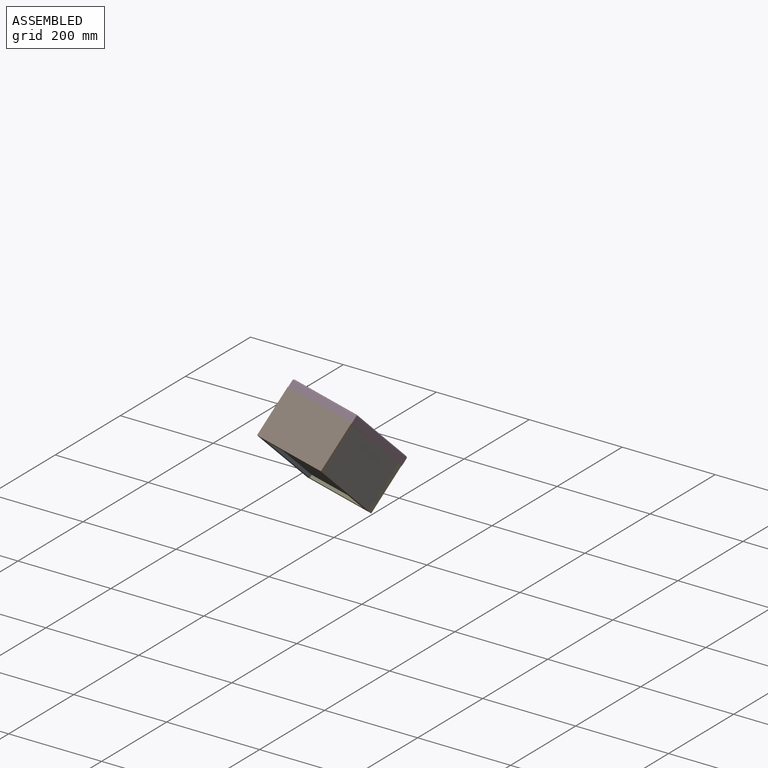
[diagram: assembled view]
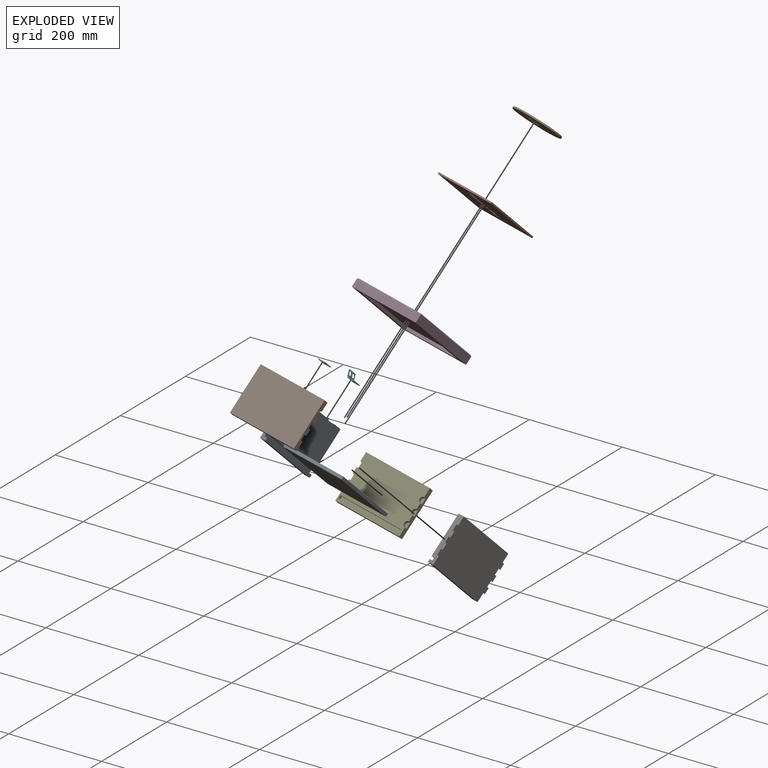
[diagram: exploded view]
GUIDED TOUR — MATED ASSEMBLY WITH SUBASSEMBLIES (Onshape document 33aced2103e464cf82bb9187, AutoMate assembly 33aced2103e464cf82bb9187_d0016f18dbe5ddd5e7f91160_2b6aa638e7e34dd8606e38a6_default)

This assembly has 12 component occurrences arranged in 10 top-level units: 8 individual components plus 2 subassemblies (S0, S1). The tour has two levels: first the top level, where each subassembly is treated as one rigid unit; then each subassembly is toured internally in its own section (nesting deeper than one subassembly level is flattened into its subassembly's section).

Components are labeled P0..P11 across the whole record; subassembly units are labeled S0..S1. A mate is a constraint between two units; its type names the relative motion it leaves free:
  FASTENED — locks the two components together rigidly (no relative motion),
  REVOLUTE — leaves rotation about the listed axis free (a hinge).
Axis/direction vectors are unit vectors and 'through' points are millimeter coordinates, both in the assembly's world frame.

TOP-LEVEL MATES (between units; each subassembly's internal mates are listed in its own section)
  1. FASTENED "Fastened 5": S1 <-> P0, direction (0.191, 0.659, 0.728) through (54.44, 19.80, -1.23) mm
  2. FASTENED "Fastened 6": S0 <-> P0, direction (0.191, 0.659, 0.728) through (56.53, -65.21, 75.15) mm
  3. FASTENED "Fastened 7": S0 <-> P3, direction (0.191, 0.659, 0.728) through (57.24, -65.20, 74.92) mm
  4. FASTENED "Fastened 1": P1 <-> P0, direction (-0.018, 0.744, -0.668) through (44.37, -130.27, 69.60) mm
  5. FASTENED "Fastened 8": P8 <-> P3, direction (0.191, 0.659, 0.728) through (125.93, -26.61, 30.46) mm
  6. FASTENED "Fastened 2": P6 <-> P1, direction (0.018, -0.744, 0.668) through (193.50, -130.32, 65.46) mm
  7. FASTENED "Fastened 9": P3 <-> P11, direction (0.191, 0.659, 0.728) through (124.58, -17.61, 35.76) mm
  8. FASTENED "Fastened 4": P0 <-> P10, direction (0.981, -0.114, -0.154) through (38.22, -82.30, -28.90) mm
  9. FASTENED "Fastened 3": P4 <-> P0, direction (0.018, -0.744, 0.668) through (40.66, 20.86, -66.19) mm

TOP-LEVEL ASSEMBLY ORDER
  1. P10 — the base component [order verified]
  2. P0 [order verified]
  3. S0 [order verified]
  4. P8 [order verified]
  5. S1 [order verified]
  6. P3 [order verified]
  7. P4 [order verified]
  8. P6 [order verified]
  9. P1 [order verified]
  10. P11 [order verified]
(P1, P3, P11 verified with a relaxed clearance tolerance: the source model stores slight part interference there.)
Order-tag legend:
  [order verified] — this step's position reverses a verified removal order: the component was checked to insert without passing through the ones already placed.

Of the 12 component occurrences, 7 carry the full construction recipe — the FeatureScript program that regenerates the part's solid from scratch; the rest are supplied as boundary geometry only. Each toured unit is shown spotlighted twice — assembled, then exploded with a leader line back to its socket (green = recipe-attached component, orange = geometry-only, blue = subassembly unit; the rest desaturated gray).
NOTE — document 2 of 2 of this assembly tour. The two overview renders and the header above are repeated from document 1; the component sections below continue where the previous document stopped.
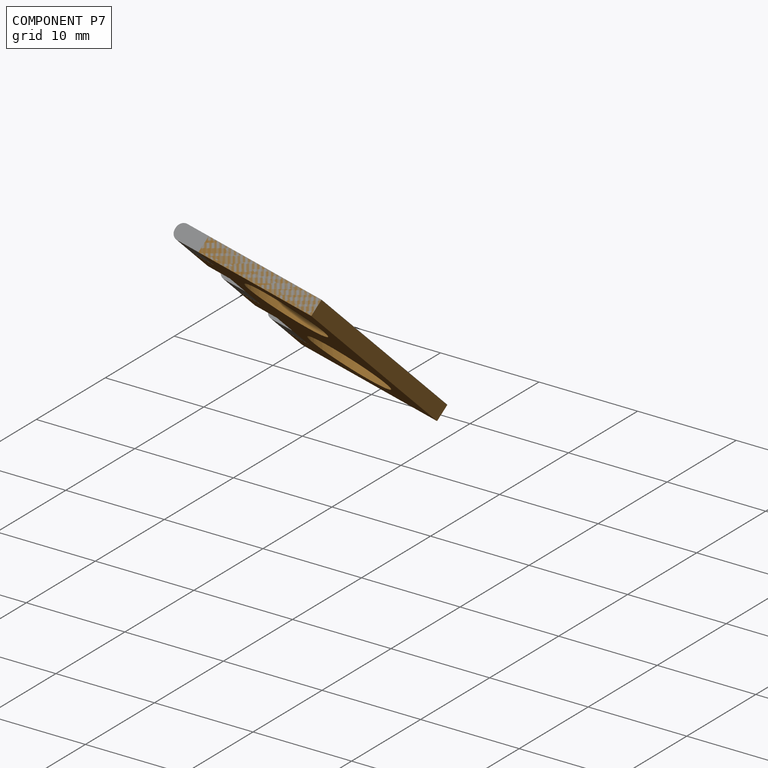
[diagram: component P7 — assembled]
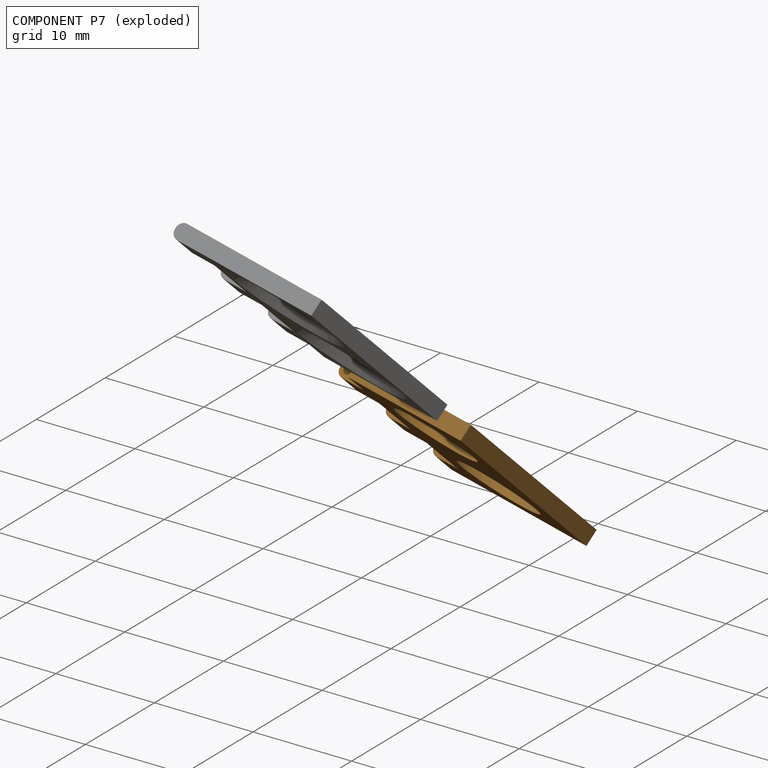
[diagram: component P7 — exploded]
COMPONENT P7 — geometry summary (no construction recipe available for this part):
  bounding box: 25.4 x 15.9 x 1.6 mm
  B-rep topology: 1 solid, 33 faces, 176 edges
  volume: 310 mm^3 (48% of its bounding box)
Held by: REVOLUTE mate "Revolute 1" to P2; REVOLUTE mate "Revolute 1" to P2.
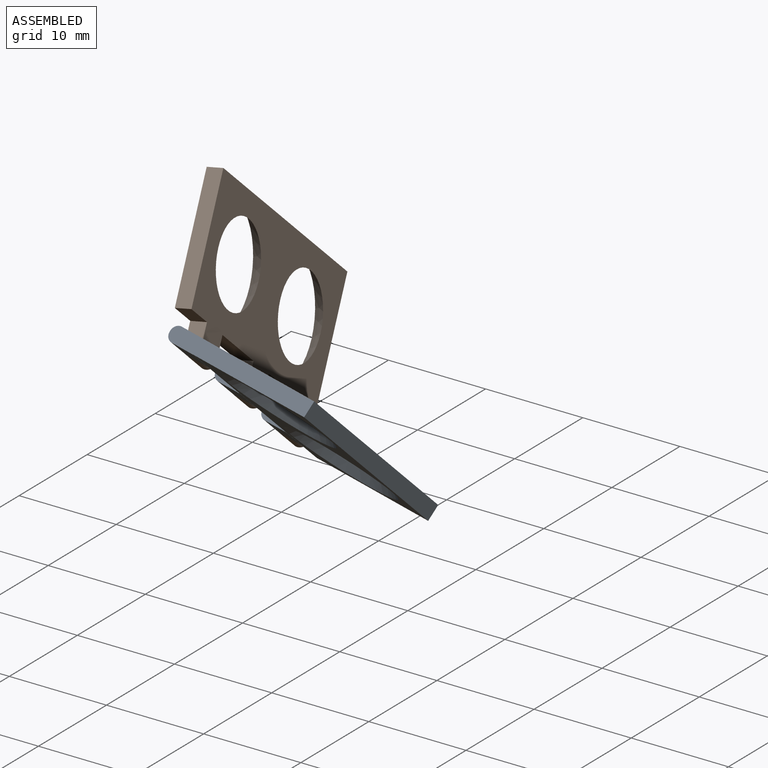
[diagram: subassembly S1 — assembled view]
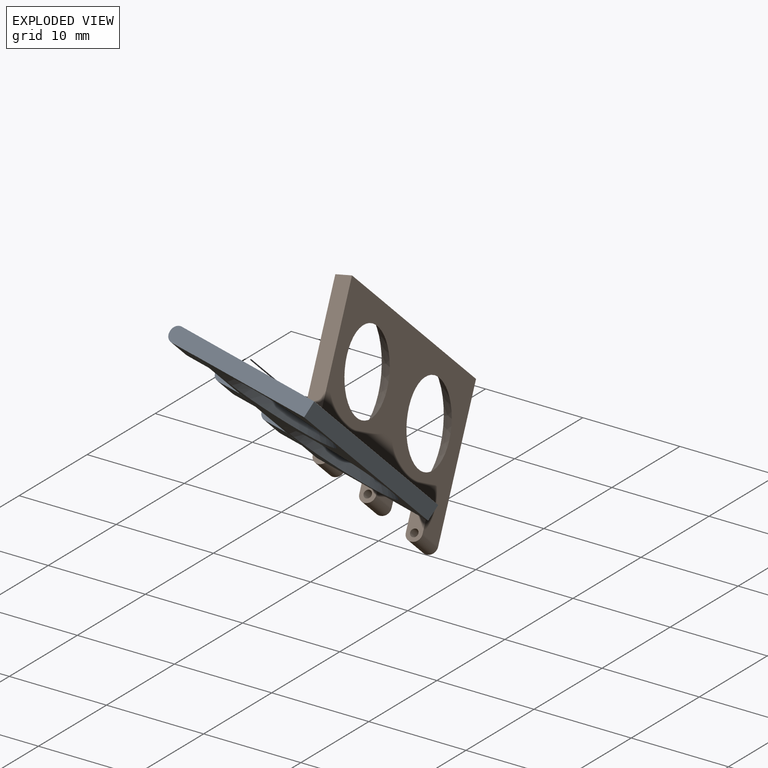
[diagram: subassembly S1 — exploded view]
SUBASSEMBLY S1 TOUR — 2 components, shown here in isolation at its own camera.

INTERNAL MATES
  1. REVOLUTE "Revolute 1": P5 <-> P9, axis (-0.018, 0.744, -0.668) through (46.56, 15.57, 3.56) mm
  2. REVOLUTE "Revolute 1": P5 <-> P9, axis (-0.018, 0.744, -0.668) through (46.56, 15.57, 3.56) mm

ASSEMBLY ORDER (within the subassembly)
  1. P5 — the base component [order heuristic]
  2. P9 [order heuristic]
Order-tag legend:
  [order heuristic] — this assembly is geometrically interlocked (no collision-free removal order exists), so components are listed in mate-graph order; insertion feasibility is not verified.
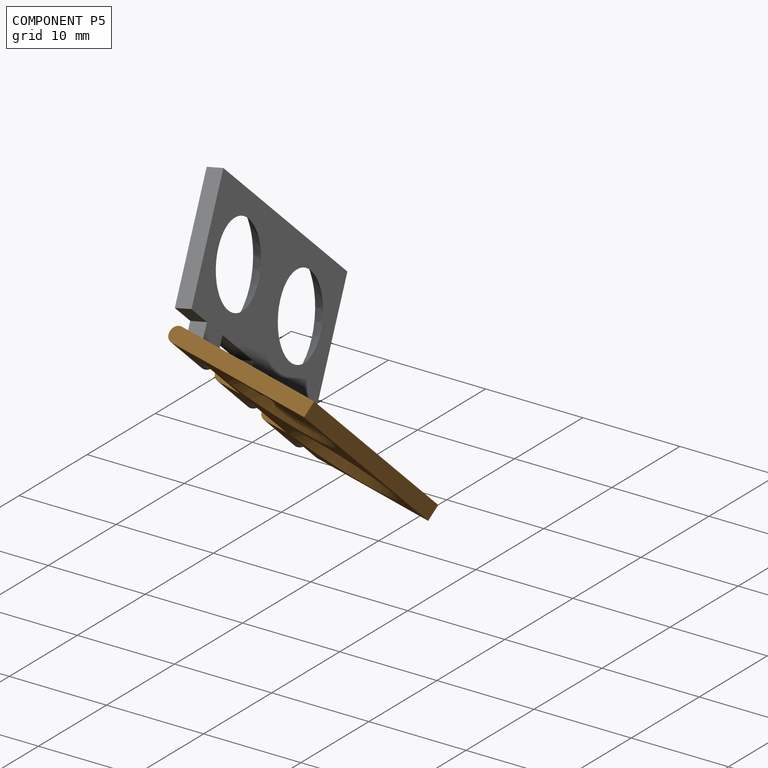
[diagram: component P5 — assembled]
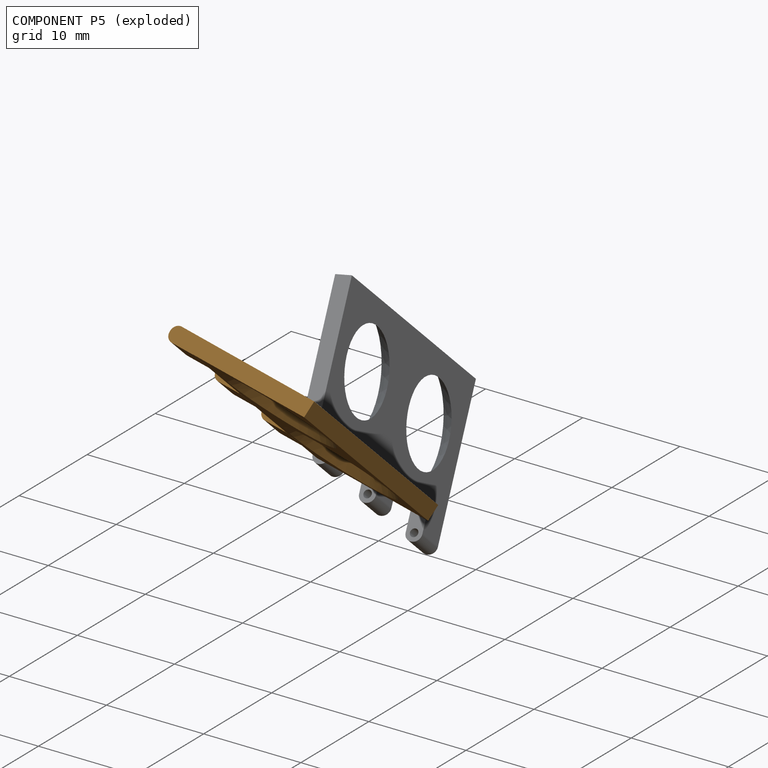
[diagram: component P5 — exploded]
COMPONENT P5 — geometry summary (no construction recipe available for this part):
  bounding box: 25.4 x 15.9 x 1.6 mm
  B-rep topology: 1 solid, 36 faces, 176 edges
  volume: 319 mm^3 (49% of its bounding box)
Held by: REVOLUTE mate "Revolute 1" to P9; REVOLUTE mate "Revolute 1" to P9.
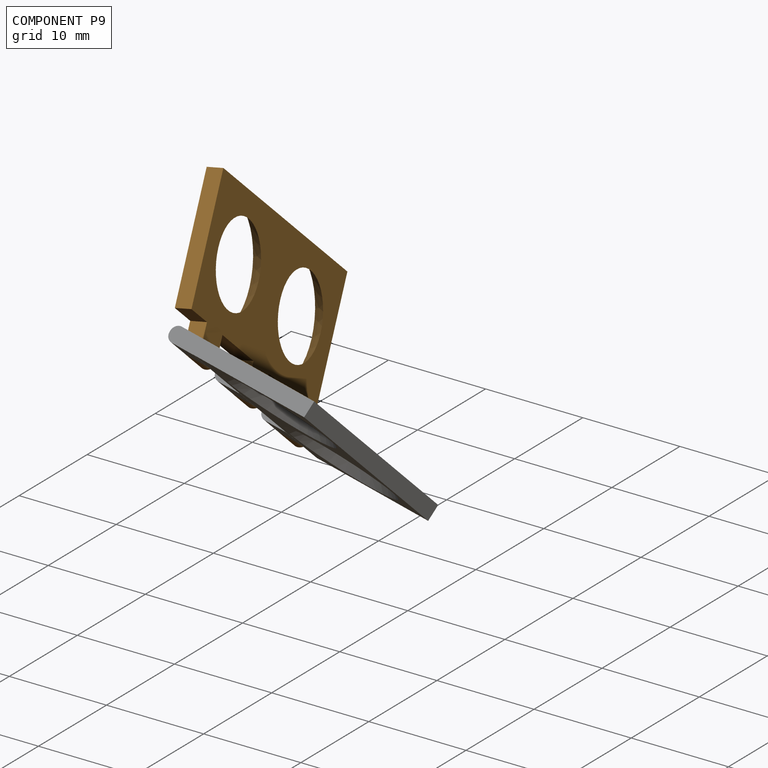
[diagram: component P9 — assembled]
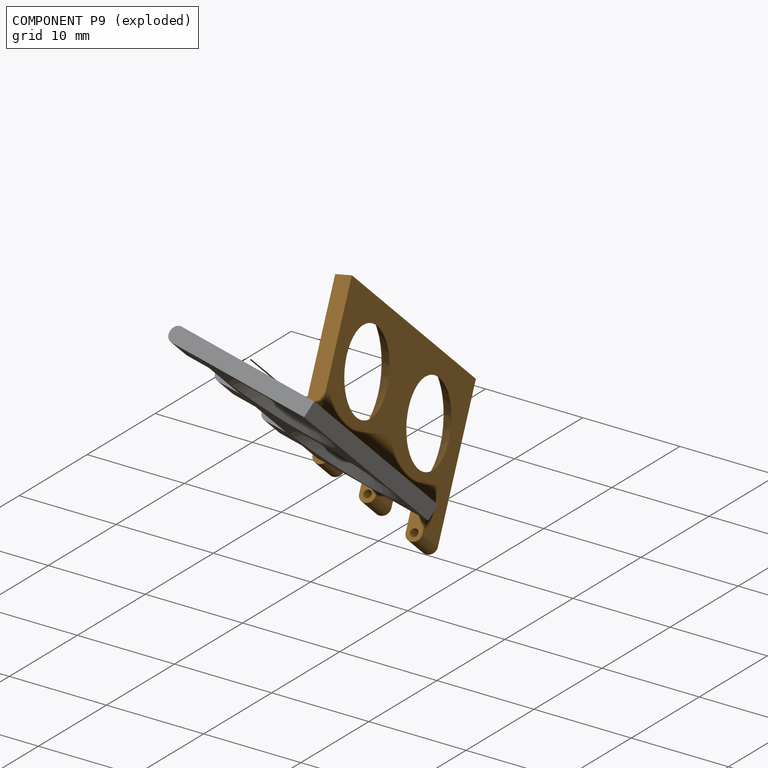
[diagram: component P9 — exploded]
COMPONENT P9 — geometry summary (no construction recipe available for this part):
  bounding box: 25.4 x 15.9 x 1.6 mm
  B-rep topology: 1 solid, 33 faces, 176 edges
  volume: 310 mm^3 (48% of its bounding box)
Held by: REVOLUTE mate "Revolute 1" to P5; REVOLUTE mate "Revolute 1" to P5.
PROVENANCE & LICENSES
Assembly (occurrences, transforms, mates, per-part STEP geometry): AutoMate dataset, Zenodo record 7776208, CC0.
Construction recipes: CADFS (HuggingFace VladPyatov/CADFS, CC-BY-4.0, layered over the ABC dataset), FeatureScript reconstruction programs keyed by ABC model id.
Join: ABC meta listings map ABC model id -> Onshape documentId; within a shared document, parts are matched by geometric signature (bounding-box dims + volume at 0.1% relative tolerance, exact B-rep face/solid counts).
Verification: 7 of this assembly's 12 components carry a recipe attachment, and every attachment is mesh-verified: the CADFS STEP and the AutoMate member STEP were compared as meshes in their shared local frame (symmetric sampled-point-to-mesh distance); worst across the 7 attachments: below the mesh-comparison resolution (tessellation chordal tolerance ~0.397 mm) on a 265 mm part.
Renders: orthographic iso camera (az 35 / el 25); the floor grid conveys scale (grid pitch printed in each image; no ruler). In the exploded view each component is displaced by its stored offset vector: the offsets alone carry the explosion direction (mate normal/axis signs are not orientation cues and do not encode it), and separation distances are assigned per mate-chain, not proportionally to assembly-order depth.
